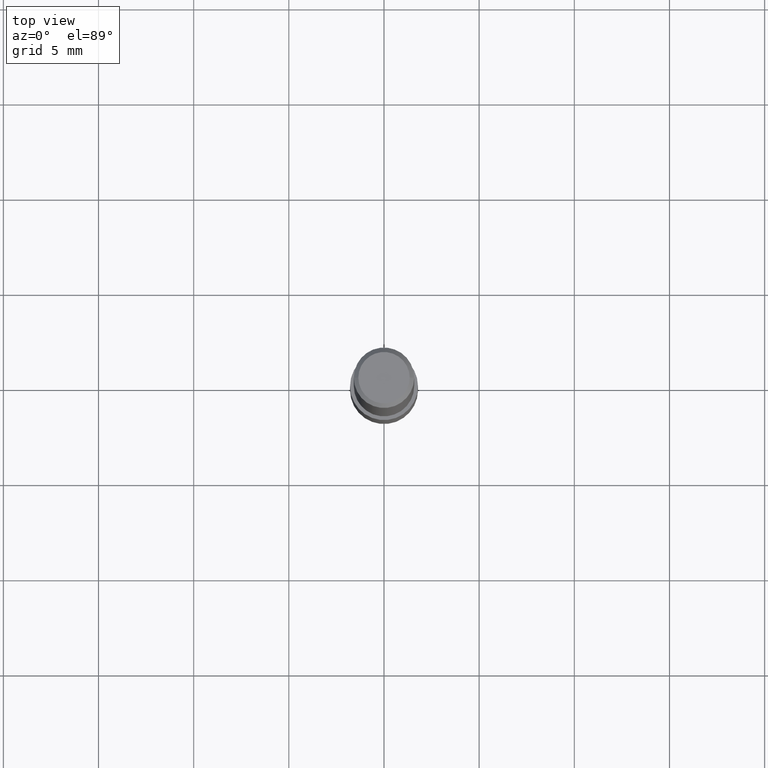
[diagram: clean part render]
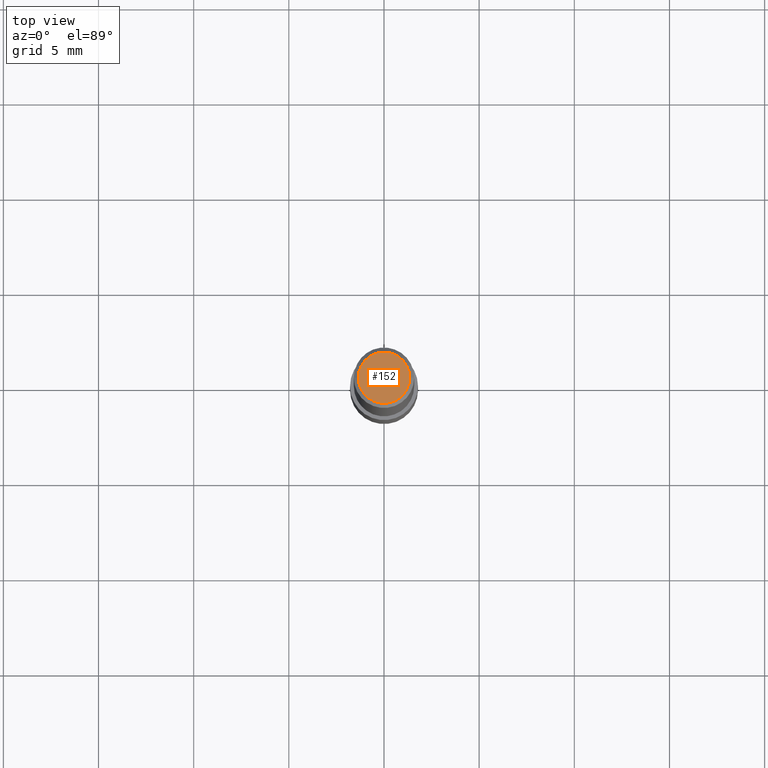
[diagram: same view with one face highlighted and labeled with its STEP entity id]
A machine part, top view. The second image highlights one B-rep face of the part: STEP entity #152.
In plain terms, the highlighted planar face has unit normal (0, -0, -1).
Its self-contained STEP definition (entity closure, byte-faithful):
#6 = VERTEX_POINT ( 'NONE', #95 ) ;
#26 = FACE_OUTER_BOUND ( 'NONE', #262, .T. ) ;
#79 = DIRECTION ( 'NONE',  ( -1.000000000000000000, 6.982962677686265922E-15, -4.876176775795935793E-29 ) ) ;
#85 = AXIS2_PLACEMENT_3D ( 'NONE', #269, #318, #235 ) ;
#95 = CARTESIAN_POINT ( 'NONE',  ( -0.05312499999999999861, 3.873362110279099094E-16, 3.061616995216862494E-21 ) ) ;
#132 = EDGE_CURVE ( 'NONE', #6, #214, #313, .T. ) ;
#133 = CARTESIAN_POINT ( 'NONE',  ( -3.743544432386672853E-50, 5.344789307371238476E-36, 1.530808498934197599E-21 ) ) ;
#135 = CIRCLE ( 'NONE', #85, 0.05312499999999999861 ) ;
#137 = CARTESIAN_POINT ( 'NONE',  ( 0.05312499999999999861, -4.129888592719939842E-16, 3.061617000609493422E-21 ) ) ;
#152 = ADVANCED_FACE ( 'NONE', ( #26 ), #309, .F. ) ;
#168 = AXIS2_PLACEMENT_3D ( 'NONE', #208, #205, #290 ) ;
#205 = DIRECTION ( 'NONE',  ( -2.445468806185136597E-29, 3.491481338843145583E-15, 1.000000000000000000 ) ) ;
#208 = CARTESIAN_POINT ( 'NONE',  ( -7.487088864773345706E-50, 1.068957861474247695E-35, 3.061616997868395197E-21 ) ) ;
#214 = VERTEX_POINT ( 'NONE', #137 ) ;
#216 = ORIENTED_EDGE ( 'NONE', *, *, #239, .T. ) ;
#218 = ORIENTED_EDGE ( 'NONE', *, *, #132, .T. ) ;
#235 = DIRECTION ( 'NONE',  ( 1.000000000000000000, -6.982962677686266711E-15, 4.876176628004948512E-29 ) ) ;
#239 = EDGE_CURVE ( 'NONE', #214, #6, #135, .T. ) ;
#250 = AXIS2_PLACEMENT_3D ( 'NONE', #133, #260, #79 ) ;
#260 = DIRECTION ( 'NONE',  ( 2.438088387897960049E-29, -3.491481338843145188E-15, -1.000000000000000000 ) ) ;
#262 = EDGE_LOOP ( 'NONE', ( #218, #216 ) ) ;
#269 = CARTESIAN_POINT ( 'NONE',  ( -7.487088864773345706E-50, 1.068957861474247695E-35, 3.061616997868395197E-21 ) ) ;
#290 = DIRECTION ( 'NONE',  ( 1.000000000000000000, -6.982962677686266711E-15, 4.876176628004948512E-29 ) ) ;
#309 = PLANE ( 'NONE',  #250 ) ;
#313 = CIRCLE ( 'NONE', #168, 0.05312499999999999861 ) ;
#318 = DIRECTION ( 'NONE',  ( -2.445468806185136597E-29, 3.491481338843145583E-15, 1.000000000000000000 ) ) ;